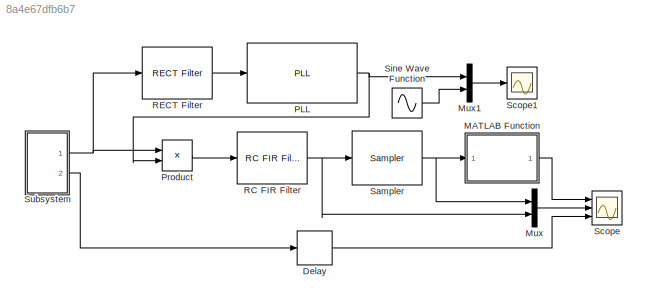
MODEL slx_8a4e67dfb6b7
KIND model
CONFIG AbsTol = auto
CONFIG EnableMultiTasking = off
CONFIG FixedStep = auto
CONFIG MaxStep = auto
CONFIG MinStep = auto
CONFIG RelTol = 1e-3
CONFIG SampleTimeConstraint = Unconstrained
CONFIG SolverName = VariableStepAuto
CONFIG StartTime = 0.0
CONFIG StopTime = 1000
BLOCK [Delay] Delay
  DelayLength = 256
  InitialCondition = 0
  InputPortMap = u0
  Ports = [1, 1]
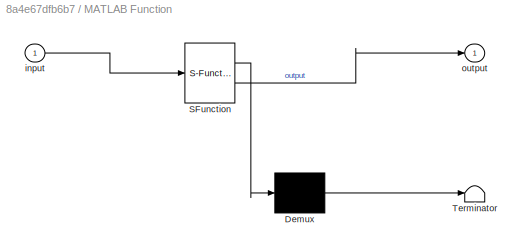
BLOCK [SubSystem] MATLAB Function
  ErrorFcn = Stateflow.Translate.translate
  PermitHierarchicalResolution = ExplicitOnly
  Ports = [1, 1]
  RequestExecContextInheritance = off
  SFBlockType = MATLAB Function
  TreatAsAtomicUnit = on
BLOCK [Demux] MATLAB Function/ Demux 
  Outputs = 1
  Ports = [1, 1]
BLOCK [S-Function] MATLAB Function/ SFunction 
  EnableBusSupport = on
  FunctionName = sf_sfun
  PortCounts = [1 2]
  Ports = [1, 2]
  SFcnIsStateOwnerBlock = off
  SFunctionDeploymentMode = off
  Tag = Stateflow S-Function 2
BLOCK [Terminator] MATLAB Function/ Terminator 
BLOCK [Inport] MATLAB Function/input
BLOCK [Outport] MATLAB Function/output
BLOCK [Mux] Mux
  DisplayOption = bar
  Inputs = 2
  Ports = [2, 1]
BLOCK [Mux] Mux1
  DisplayOption = bar
  Inputs = 2
  Ports = [2, 1]
BLOCK [Reference] PLL  REF=dsp_blocks/Timing /PLL
  NameLocation = top
  Ports = [1, 1]
  SourceBlock = dsp_blocks/Timing /PLL
BLOCK [Product] Product
  Ports = [2, 1]
BLOCK [Reference] RC FIR Filter  REF=dsp_blocks/Filters/RC FIR Filter
  Ports = [1, 1]
  SourceBlock = dsp_blocks/Filters/RC FIR Filter
BLOCK [Reference] RECT Filter  REF=dsp_blocks/Filters/RECT Filter
  Ports = [1, 1]
  SourceBlock = dsp_blocks/Filters/RECT Filter
BLOCK [Reference] Sampler  REF=dsp_blocks/Conversions/Sampler
  Ports = [1, 1]
  SourceBlock = dsp_blocks/Conversions/Sampler
BLOCK [Scope] Scope
  Floating = off
  NumInputPorts = 3
  Ports = [3]
  ScopeSpecificationString = Simulink.scopes.TimeScopeBlockCfg('CurrentConfiguration', extmgr.ConfigurationSet(extmgr.Configuration('Core','General UI',true),extmgr.Configuration('Core','Source UI',true),extmgr.Configuration('Sources','WiredSimulink',true),extmgr.Configuration('Visuals','Time Domain',true,'SerializedDisplays',{struct('MinYLimReal','-0.125','MaxYLimReal','1.125','YLabelReal','','MinYLimMag','0.00000','MaxYLimM...<+2709ch>
BLOCK [Scope] Scope1
  Floating = off
  NumInputPorts = 1
  Ports = [1]
  ScopeSpecificationString = Simulink.scopes.TimeScopeBlockCfg('CurrentConfiguration', extmgr.ConfigurationSet(extmgr.Configuration('Core','General UI',true),extmgr.Configuration('Core','Source UI',true),extmgr.Configuration('Sources','WiredSimulink',true,'DataLoggingVariableName','ScopeData1'),extmgr.Configuration('Visuals','Time Domain',true,'SerializedDisplays',{struct('MinYLimReal','-1.28131','MaxYLimReal','1.12132','YLab...<+1431ch>
BLOCK [Sin] Sine Wave Function
  Amplitude = 2
  Frequency = 2*pi*0.1
  Ports = [0, 1]
  SampleTime = 0
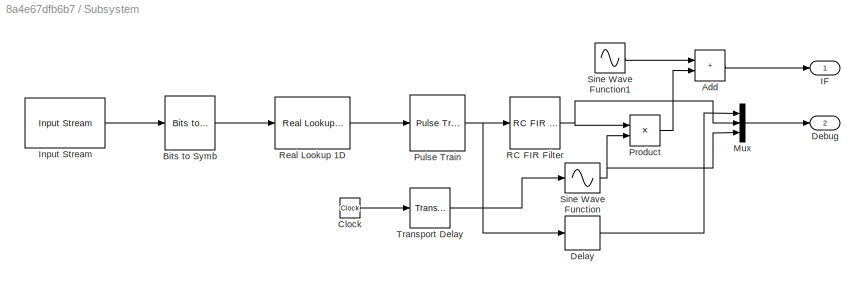
BLOCK [SubSystem] Subsystem
  Ports = [0, 2]
  RequestExecContextInheritance = off
BLOCK [Sum] Subsystem/Add
  IconShape = rectangular
  Ports = [2, 1]
BLOCK [Reference] Subsystem/Bits to Symb  REF=dsp_blocks/Conversions/Bits to Symb
  Ports = [1, 1]
  SourceBlock = dsp_blocks/Conversions/Bits to Symb
BLOCK [Clock] Subsystem/Clock
BLOCK [Outport] Subsystem/Debug
  Port = 2
BLOCK [Delay] Subsystem/Delay
  DelayLength = 256
  InputPortMap = u0
  Ports = [1, 1]
BLOCK [Outport] Subsystem/IF
BLOCK [Reference] Subsystem/Input Stream  REF=dsp_blocks/Sources//Sinks/Input Stream
  Ports = [0, 1]
  SourceBlock = dsp_blocks/Sources//Sinks/Input Stream
BLOCK [Mux] Subsystem/Mux
  DisplayOption = bar
  Inputs = 3
  Ports = [3, 1]
BLOCK [Product] Subsystem/Product
  Ports = [2, 1]
BLOCK [Reference] Subsystem/Pulse Train  REF=dsp_blocks/Conversions/Pulse Train
  Ports = [1, 1]
  SourceBlock = dsp_blocks/Conversions/Pulse Train
BLOCK [Reference] Subsystem/RC FIR Filter  REF=dsp_blocks/Filters/RC FIR Filter
  Ports = [1, 1]
  SourceBlock = dsp_blocks/Filters/RC FIR Filter
BLOCK [Reference] Subsystem/Real Lookup 1D  REF=dsp_blocks/Conversions/Real Lookup 1D
  Ports = [1, 1]
  SourceBlock = dsp_blocks/Conversions/Real Lookup 1D
BLOCK [Sin] Subsystem/Sine Wave Function
  Frequency = 2*pi*0.1
  Ports = [1, 1]
  SampleTime = 0
  TimeSource = Use external signal
BLOCK [Sin] Subsystem/Sine Wave Function1
  Amplitude = 0.05
  Frequency = 2*pi*0.05
  Ports = [0, 1]
  SampleTime = 0
BLOCK [TransportDelay] Subsystem/Transport Delay
  Ports = [1, 1]
LINE Delay:1 -> Scope:3
LINE MATLAB Function:1 -> Scope:1
LINE Mux1:1 -> Scope1:1
LINE Mux:1 -> Scope:2
NET PLL:1 -> Mux1:1, Product:2
LINE Product:1 -> RC FIR Filter:1
NET RC FIR Filter:1 -> Mux:2, Sampler:1
LINE RECT Filter:1 -> PLL:1
NET Sampler:1 -> MATLAB Function:1, Mux:1
LINE Sine Wave Function:1 -> Mux1:2
LINE Subsystem/Add:1 -> Subsystem/IF:1
LINE Subsystem/Bits to Symb:1 -> Subsystem/Real Lookup 1D:1
LINE Subsystem/Clock:1 -> Subsystem/Transport Delay:1
LINE Subsystem/Delay:1 -> Subsystem/Mux:1
LINE Subsystem/Input Stream:1 -> Subsystem/Bits to Symb:1
LINE Subsystem/Mux:1 -> Subsystem/Debug:1
LINE Subsystem/Product:1 -> Subsystem/Add:2
NET Subsystem/Pulse Train:1 -> Subsystem/Delay:1, Subsystem/RC FIR Filter:1
NET Subsystem/RC FIR Filter:1 -> Subsystem/Mux:2, Subsystem/Product:1
LINE Subsystem/Real Lookup 1D:1 -> Subsystem/Pulse Train:1
LINE Subsystem/Sine Wave Function1:1 -> Subsystem/Add:1
NET Subsystem/Sine Wave Function:1 -> Subsystem/Mux:3, Subsystem/Product:2
LINE Subsystem/Transport Delay:1 -> Subsystem/Sine Wave Function:1
NET Subsystem:1 -> Product:1, RECT Filter:1
LINE Subsystem:2 -> Delay:1
note: NET lines group one-source signal fan-out (src -> all destinations, sorted); 1:1 wires keep LINE
CHART MATLAB Function states=1 transitions=1
  STATE_LABEL 'eML_blk_kernel()'
  STATE_LABEL 'SCRIPT:\nfunction output = fcn(input)\n\nif (input > 0)\n    output = 1;\nelse\n    output = 0;\nend\n'
CHART  states=0 transitions=0
